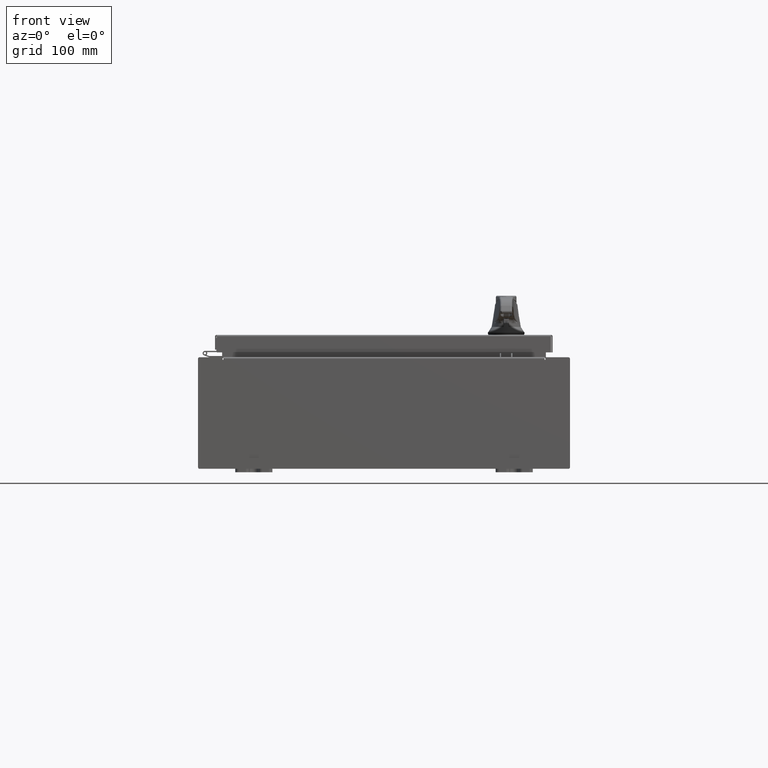
[diagram: clean part render]
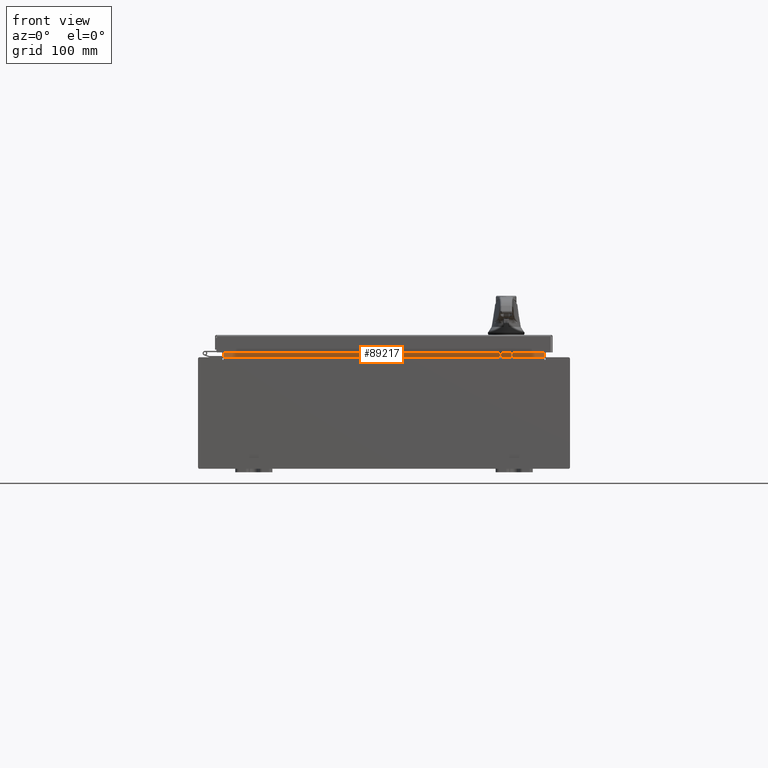
[diagram: same view with one face highlighted and labeled with its STEP entity id]
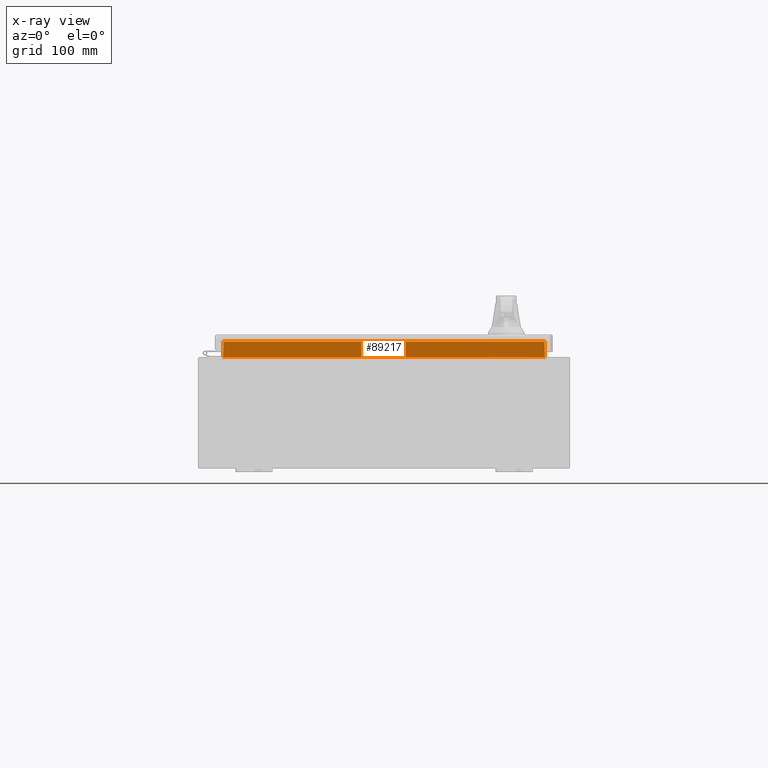
[diagram: x-ray of the same camera — body ghosted, the highlighted face saturated]
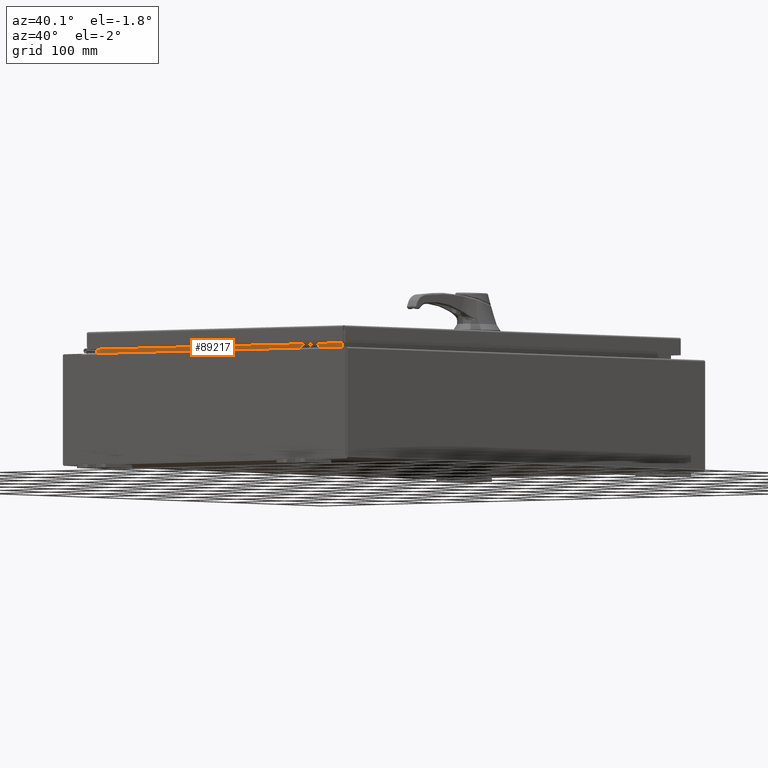
[diagram: same view with one face highlighted and labeled with its STEP entity id]
A machine part, front view. The second image highlights one B-rep face of the part: STEP entity #89217.
The next image is the same camera in x-ray: the body ghosted, the highlighted face saturated — about 0% of this face is hidden behind the body in this view.
A second angle (auxiliary view) of the same face is appended — the face is thin or edge-on in the first view.
In plain terms, the highlighted planar face has unit normal (0, -1, 0).
Its self-contained STEP definition (entity closure, byte-faithful):
#5099 = DIRECTION ( 'NONE',  ( -0.0000000000000000000, -0.0000000000000000000, 1.000000000000000000 ) ) ;
#8334 = DIRECTION ( 'NONE',  ( 0.0000000000000000000, -0.0000000000000000000, 1.000000000000000000 ) ) ;
#8765 = EDGE_CURVE ( 'NONE', #49257, #9388, #106255, .T. ) ;
#9388 = VERTEX_POINT ( 'NONE', #107849 ) ;
#11101 = ORIENTED_EDGE ( 'NONE', *, *, #8765, .F. ) ;
#17036 = AXIS2_PLACEMENT_3D ( 'NONE', #117915, #63087, #8334 ) ;
#17203 = DIRECTION ( 'NONE',  ( -1.000000000000000000, -0.0000000000000000000, -0.0000000000000000000 ) ) ;
#23250 = EDGE_CURVE ( 'NONE', #82796, #49257, #50584, .T. ) ;
#25199 = LINE ( 'NONE', #48693, #46627 ) ;
#27193 = DIRECTION ( 'NONE',  ( 1.000000000000000000, 0.0000000000000000000, -6.325772226333218300E-017 ) ) ;
#31243 = LINE ( 'NONE', #63968, #101429 ) ;
#32252 = CARTESIAN_POINT ( 'NONE',  ( 8.637200000000000000, -1.300299999999999800, 3.925300000000005300 ) ) ;
#39682 = EDGE_CURVE ( 'NONE', #70998, #82796, #31243, .T. ) ;
#46627 = VECTOR ( 'NONE', #57873, 39.37007874015748100 ) ;
#46683 = CARTESIAN_POINT ( 'NONE',  ( -8.637200000000000000, -1.300299999999999800, 3.013000000000004800 ) ) ;
#47707 = VECTOR ( 'NONE', #5099, 39.37007874015748100 ) ;
#48693 = CARTESIAN_POINT ( 'NONE',  ( -8.637200000000000000, -1.300299999999999800, 3.000000000000005300 ) ) ;
#49257 = VERTEX_POINT ( 'NONE', #102178 ) ;
#50584 = LINE ( 'NONE', #32252, #47707 ) ;
#56940 = ORIENTED_EDGE ( 'NONE', *, *, #39682, .F. ) ;
#57873 = DIRECTION ( 'NONE',  ( -0.0000000000000000000, -0.0000000000000000000, -1.000000000000000000 ) ) ;
#63087 = DIRECTION ( 'NONE',  ( 0.0000000000000000000, 1.000000000000000000, 0.0000000000000000000 ) ) ;
#63968 = CARTESIAN_POINT ( 'NONE',  ( -8.637200000000000000, -1.300299999999999800, 3.013000000000005200 ) ) ;
#68401 = ORIENTED_EDGE ( 'NONE', *, *, #99178, .F. ) ;
#70998 = VERTEX_POINT ( 'NONE', #46683 ) ;
#71914 = PLANE ( 'NONE',  #17036 ) ;
#82796 = VERTEX_POINT ( 'NONE', #94413 ) ;
#83479 = FACE_OUTER_BOUND ( 'NONE', #92708, .T. ) ;
#89217 = ADVANCED_FACE ( 'NONE', ( #83479 ), #71914, .T. ) ;
#92708 = EDGE_LOOP ( 'NONE', ( #68401, #11101, #115752, #56940 ) ) ;
#94413 = CARTESIAN_POINT ( 'NONE',  ( 8.637199999999996400, -1.300299999999999800, 3.013000000000004800 ) ) ;
#99178 = EDGE_CURVE ( 'NONE', #9388, #70998, #25199, .T. ) ;
#101429 = VECTOR ( 'NONE', #27193, 39.37007874015748100 ) ;
#102178 = CARTESIAN_POINT ( 'NONE',  ( 8.637200000000000000, -1.300299999999999800, 3.837600000000005000 ) ) ;
#106255 = LINE ( 'NONE', #107995, #109098 ) ;
#107849 = CARTESIAN_POINT ( 'NONE',  ( -8.637200000000000000, -1.300300000000000000, 3.837600000000005000 ) ) ;
#107995 = CARTESIAN_POINT ( 'NONE',  ( 8.637200000000000000, -1.300300000000000000, 3.837600000000005000 ) ) ;
#109098 = VECTOR ( 'NONE', #17203, 39.37007874015748100 ) ;
#115752 = ORIENTED_EDGE ( 'NONE', *, *, #23250, .F. ) ;
#117915 = CARTESIAN_POINT ( 'NONE',  ( 0.0000000000000000000, -1.300299999999999800, 0.0000000000000000000 ) ) ;